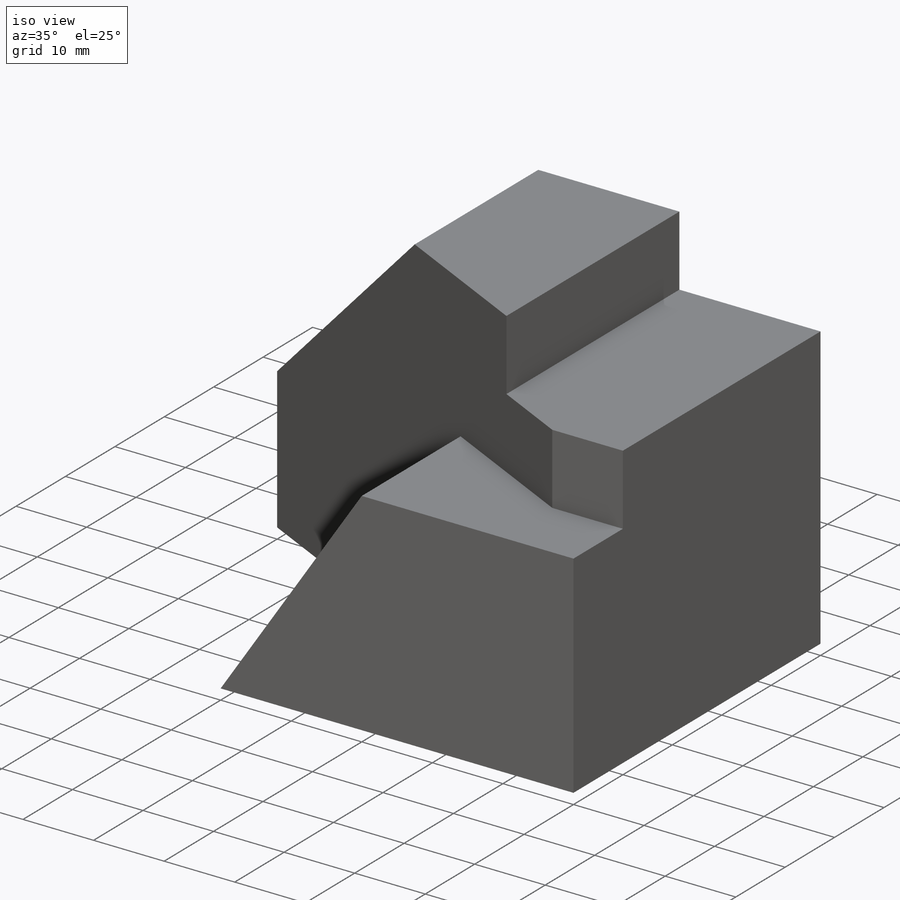
[diagram: iso view]
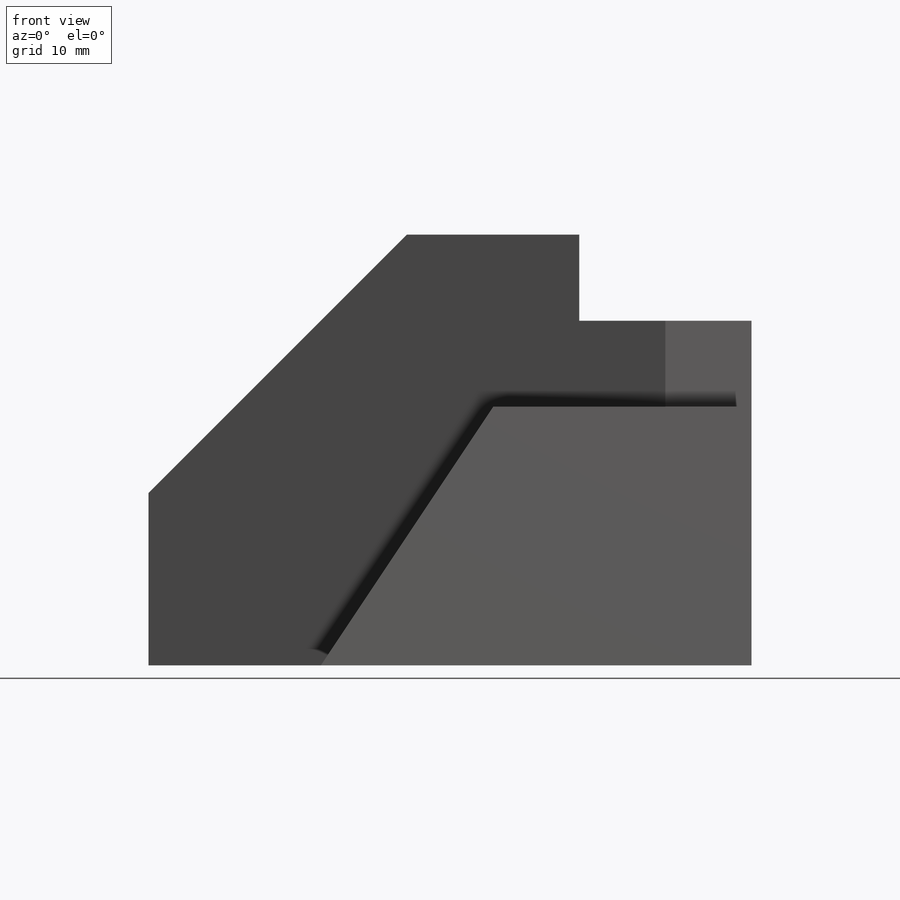
[diagram: front view]
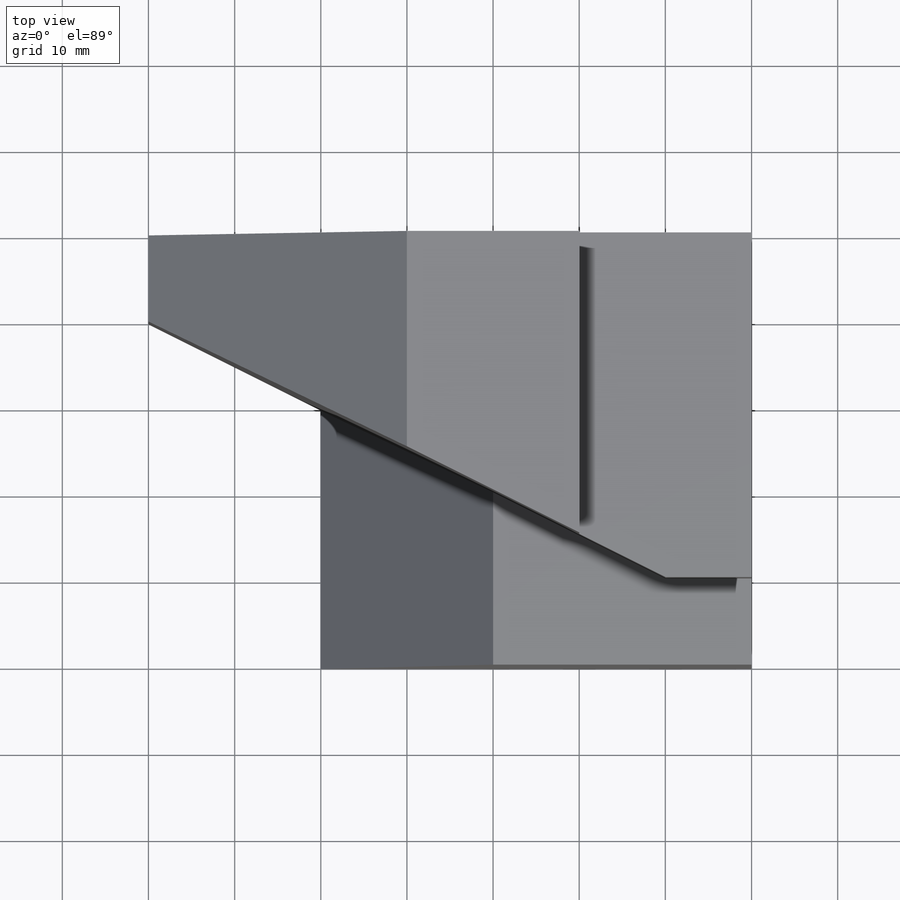
[diagram: top view]
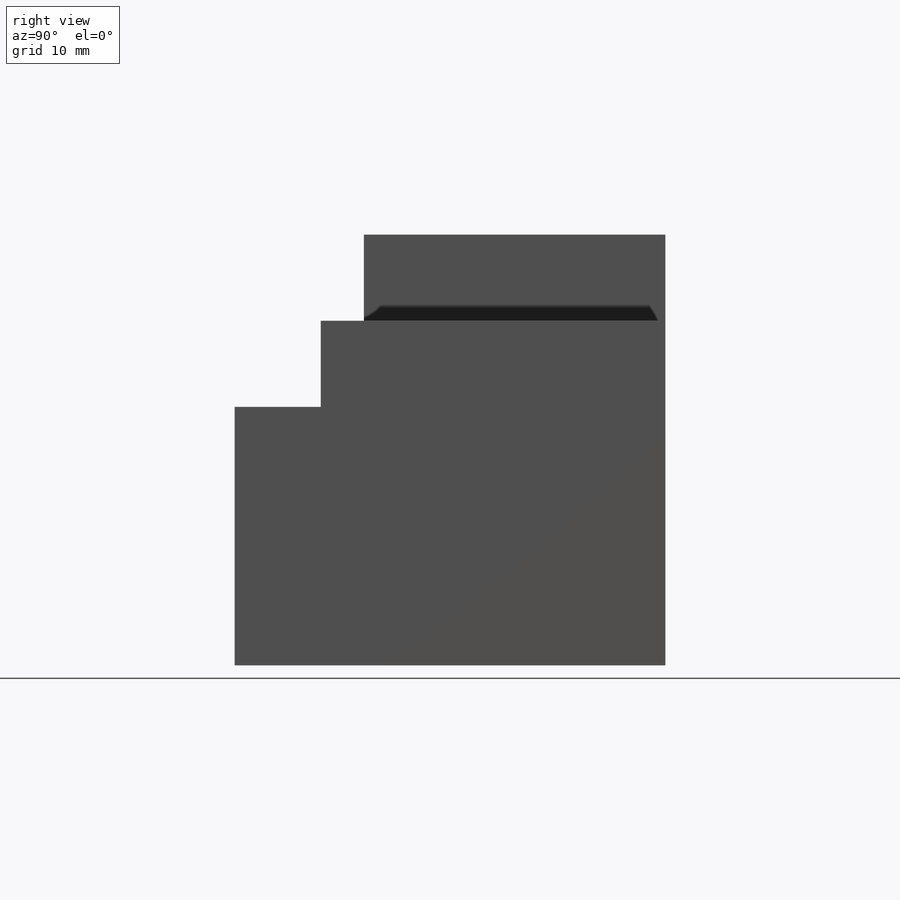
[diagram: right view]
SOLIDWORKS PART (.sldprt)
format: sldprt  version: not decoded by parser v0  size: 249,344 bytes
history: native  units: mm
features: sketch x11, extrude x6, cut_extrude x5, material x1 (+13 scaffold rows collapsed)
feature tree (36):
  scaffold x13  (default folders/planes/origin — collapsed)
  material  "Material <not specified>"
  sketch  "Sketch1"  dims[D1=70.0mm D2=50.0mm]
  extrude  "Boss-Extrude1"  Depth=50mm
  sketch  "Sketch2"  dims[D1=20.0mm D2=10.0mm D3=30.0mm D4=30.0mm]
  cut_extrude  "Cut-Extrude1"  Depth=50mm
  sketch  "Sketch3"  dims[D1=20.0mm D2=30.0mm D3=10.0mm]
  cut_extrude  "Cut-Extrude2"  Depth=50mm
  sketch  "Sketch5"  dims[D1=20.0mm D2=30.0mm D3=10.0mm]
  cut_extrude  "Cut-Extrude3"  Depth=30mm
  sketch  "Sketch6"
  cut_extrude  "Cut-Extrude4"  Depth=10mm
  sketch  "Sketch7"  dims[D1=60.0mm]
  extrude  "Boss-Extrude2"  Depth=10mm
  sketch  "Sketch8"
  cut_extrude  "Cut-Extrude5"  Depth=10mm
  sketch  "Sketch9"  dims[D1=15.0mm D2=20.0mm]
  extrude  "Boss-Extrude3"  Depth=10mm
  sketch  "Sketch10"
  extrude  "Boss-Extrude4"  Depth=10mm
  sketch  "Sketch11"
  extrude  "Boss-Extrude5"  Depth=10mm
  sketch  "Sketch12"
  extrude  "Boss-Extrude6"  Depth=22mm
decode coverage: 17 of 22 modeling features carry decoded parameters
note: suppression state not decoded; provenance and decode notes live in map.json
